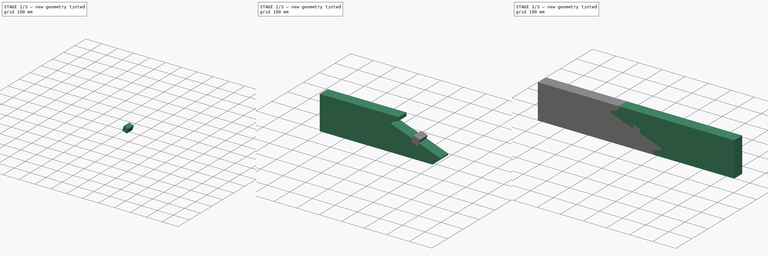
[diagram: build sequence overview — one tinted view per stage of 3, left to right]
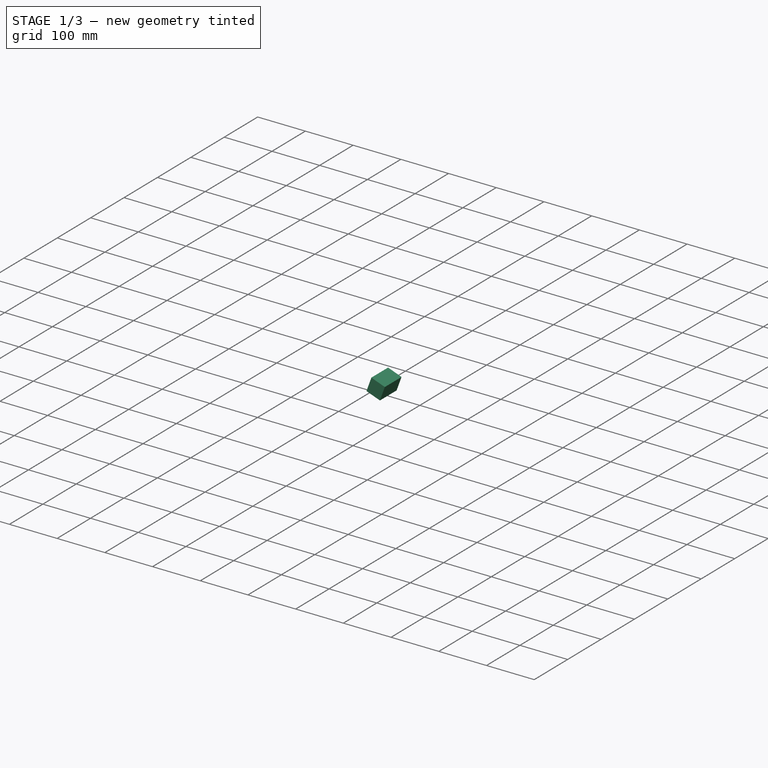
[diagram: stage 1 of 3 — iso view after this stage's code; geometry added in this stage tinted green]
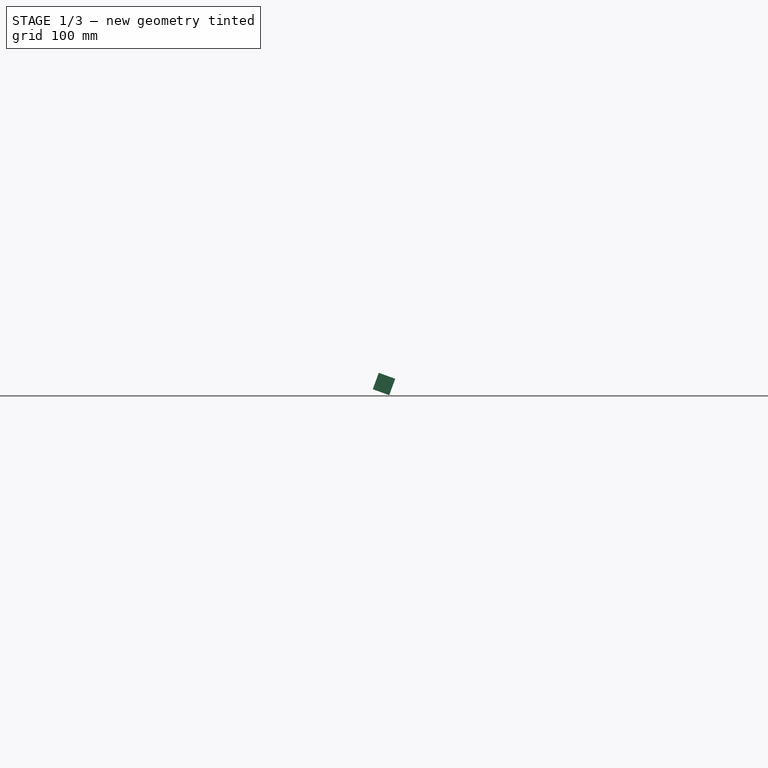
[diagram: stage 1 of 3 — front view after this stage's code; geometry added in this stage tinted green]
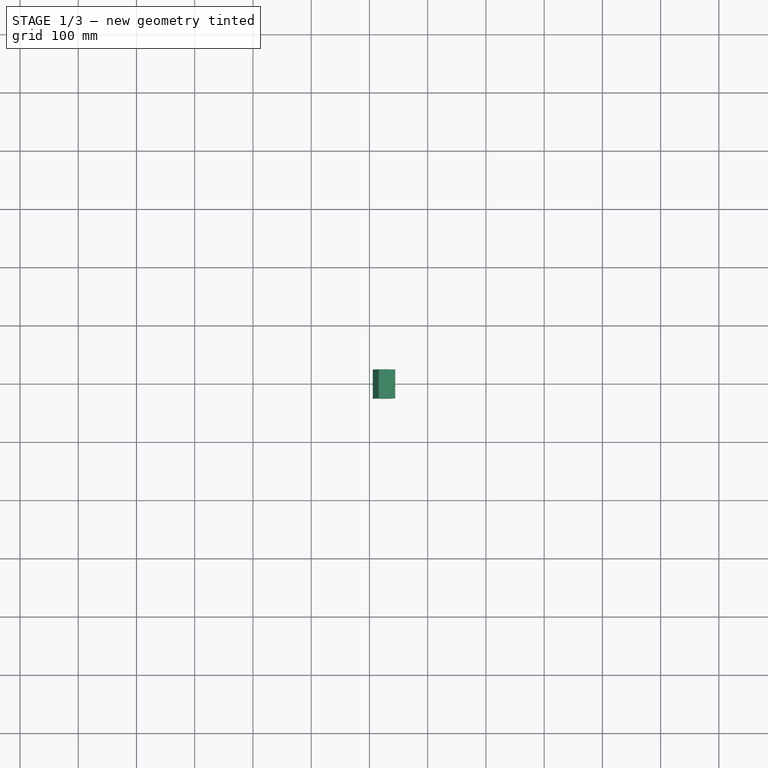
[diagram: stage 1 of 3 — top view after this stage's code; geometry added in this stage tinted green]
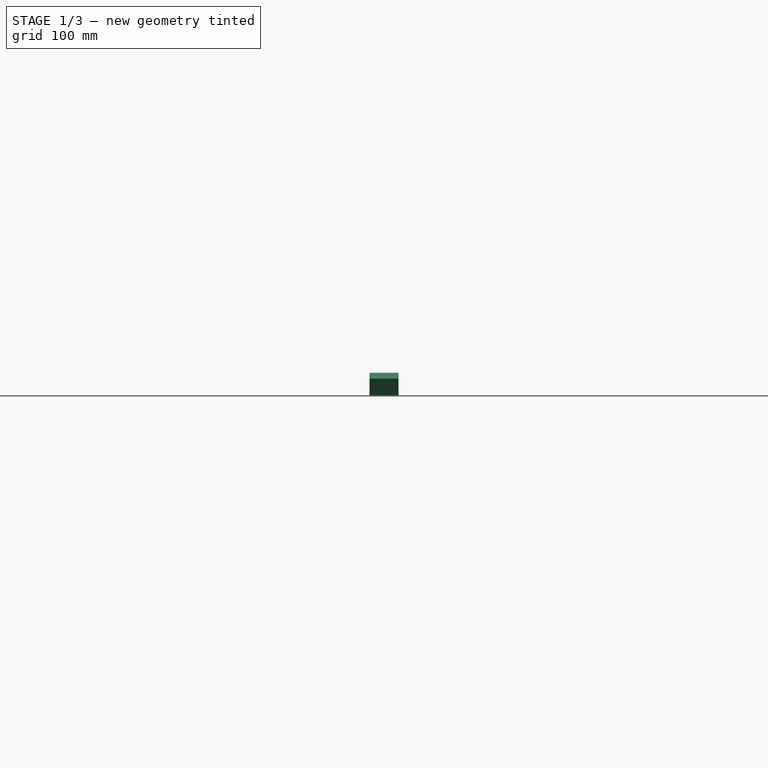
[diagram: stage 1 of 3 — right view after this stage's code; geometry added in this stage tinted green]
FCSTD DOCUMENT  (FreeCAD 0.18R13516 (Git))
Label: EMENDA VIGA MADEIRA
License: All rights reserved
LicenseURL: http://en.wikipedia.org/wiki/All_rights_reserved
objects: PartDesign::FeatureBase×3, Sketcher::SketchObject×2, PartDesign::Pad×2, PartDesign::Body×2, PartDesign::Fillet×1
note: 12 computed .brp shape members not serialized (recipe doc carries the construction recipe); baked Part::Feature solids carry a one-line shape summary decoded from their .brp

FEATURE [PartDesign::Body] Body
  Group = -> [Sketch,Pad,Fillet]
  Origin = -> Origin
  Tip = -> Fillet
FEATURE [Sketcher::SketchObject] Sketch001
  MapMode = 5
  Placement = pos=(0,0,0) rot=(1,0,0;1.5708rad)
  Support = -> [XZ_Plane001]
  sketch-geometry (5):
    g0: LineSegment StartX=-83.9651 StartY=94.2257 StartZ=0 EndX=-94.2257 EndY=66.0349 EndZ=0
    g1: LineSegment StartX=-94.2257 StartY=66.0349 StartZ=0 EndX=-66.0349 EndY=55.7743 EndZ=0
    g2: LineSegment StartX=-66.0349 StartY=55.7743 StartZ=0 EndX=-55.7743 EndY=83.9651 EndZ=0
    g3: LineSegment StartX=-55.7743 StartY=83.9651 StartZ=0 EndX=-83.9651 EndY=94.2257 EndZ=0
    g4: Circle [constr] CenterX=-75 CenterY=75 CenterZ=0 NormalX=0 NormalY=0 NormalZ=1 AngleXU=0 Radius=21.2132
  constraints (15):
    c: Coincident(g0,g1)
    c: Coincident(g1,g2)
    c: Coincident(g2,g3)
    c: Coincident(g3,g0)
    c: Equal(g0,g1)
    c: Equal(g0,g2)
    c: Equal(g0,g3)
    c: PointOnObject(g0,g4)
    c: PointOnObject(g1,g4)
    c: PointOnObject(g2,g4)
    c: PointOnObject(g3,g4)
    c: Distance(g3) = 30
    c: DistanceX(g4) = -75
    c: DistanceY(g4) = 75
    c: Angle(g-1,g1) = 2.79253
FEATURE [PartDesign::Pad] Pad001
  Length = 50
  Length2 = 100
  Midplane = true
  Placement = pos=(0,0,0) rot=(1,0,0;1.5708rad)
  Profile = -> Sketch001
  Type = 0
FEATURE [PartDesign::FeatureBase] Clone002
  BaseFeature = -> Pad001
  Placement = pos=(0,0,0) rot=(1,0,0;1.5708rad)
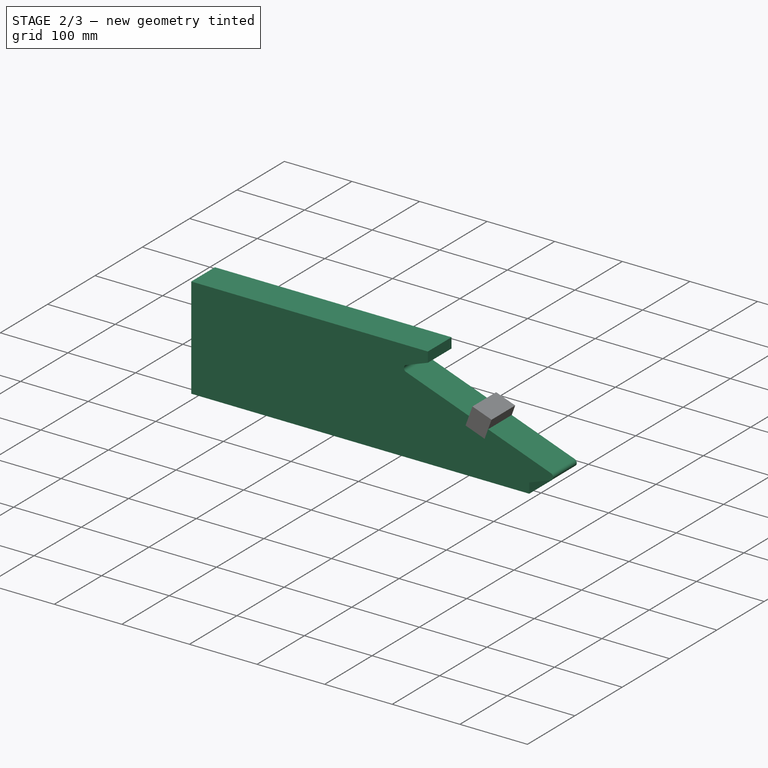
[diagram: stage 2 of 3 — iso view after this stage's code; geometry added in this stage tinted green]
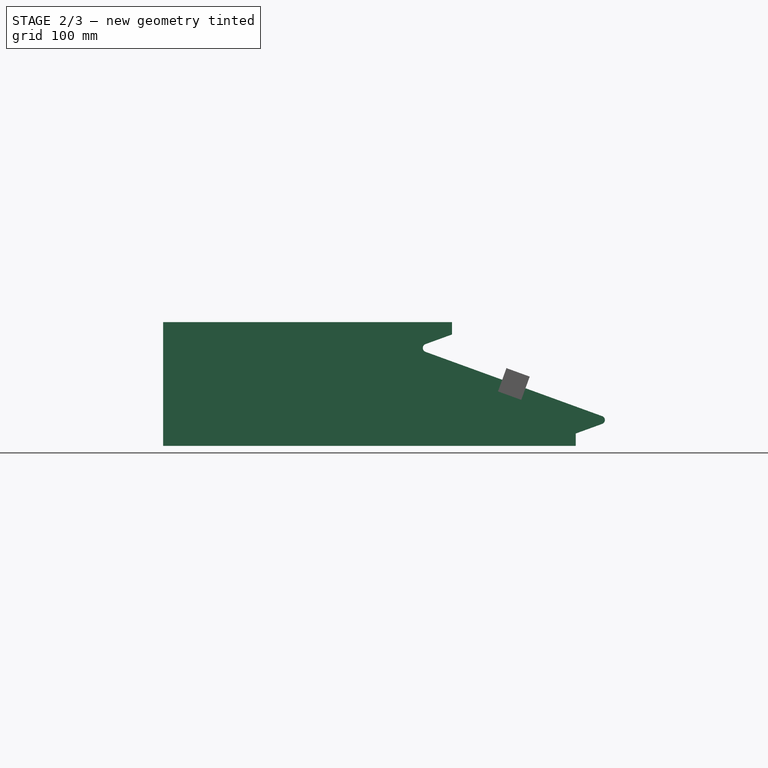
[diagram: stage 2 of 3 — front view after this stage's code; geometry added in this stage tinted green]
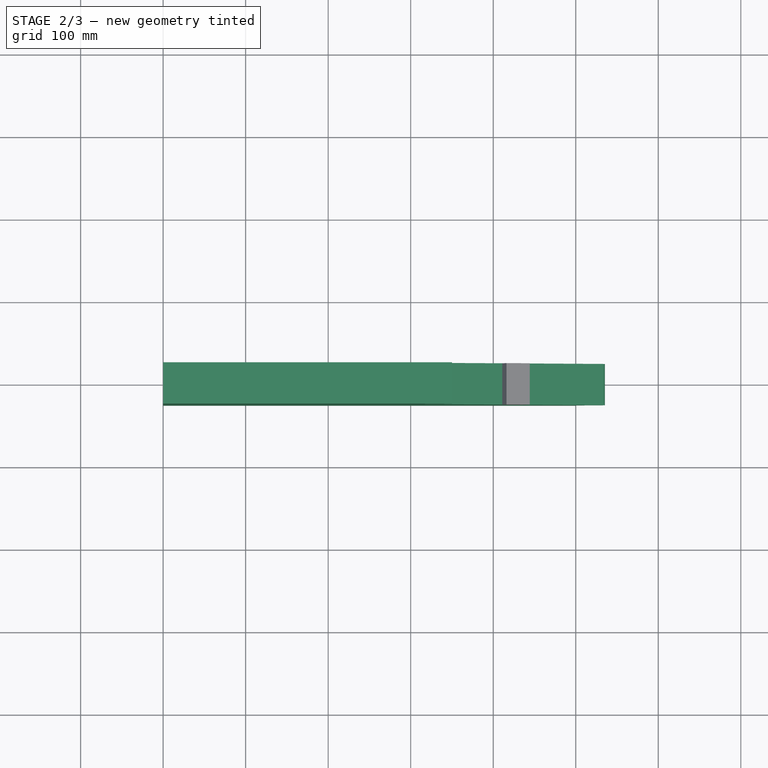
[diagram: stage 2 of 3 — top view after this stage's code; geometry added in this stage tinted green]
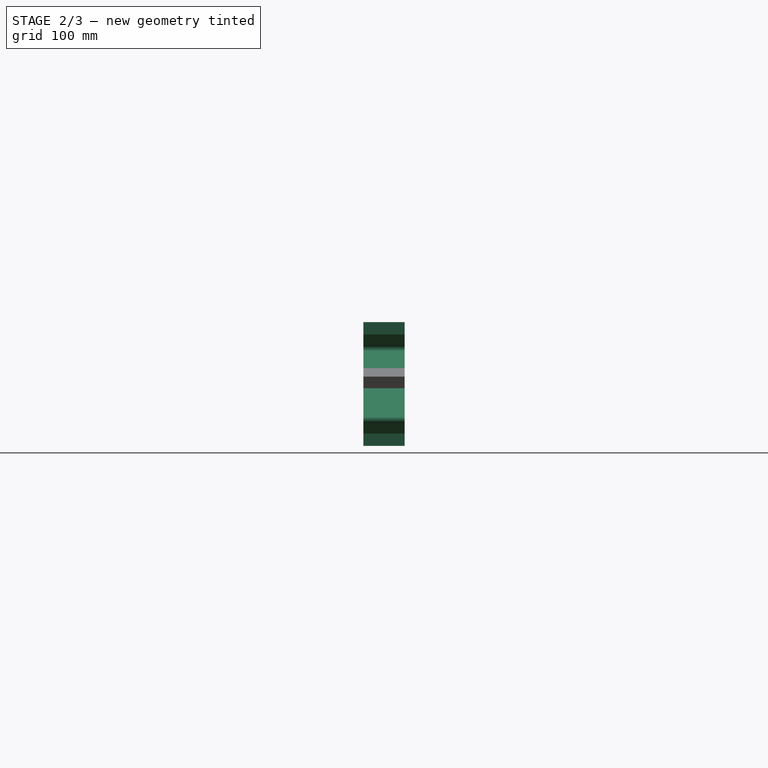
[diagram: stage 2 of 3 — right view after this stage's code; geometry added in this stage tinted green]
FEATURE [Sketcher::SketchObject] Sketch
  MapMode = 5
  Placement = pos=(0,0,0) rot=(1,0,0;1.5708rad)
  Support = -> [XZ_Plane]
  sketch-geometry (12):
    g0: LineSegment StartX=0 StartY=0 StartZ=0 EndX=0 EndY=15 EndZ=0
    g1: LineSegment StartX=0 StartY=15 StartZ=0 EndX=44.9243 EndY=31.3511 EndZ=0
    g2: LineSegment StartX=44.9243 StartY=31.3511 StartZ=0 EndX=-60.9046 EndY=69.8697 EndZ=0
    g3: LineSegment StartX=-60.9046 StartY=69.8697 StartZ=0 EndX=-66.0349 EndY=55.7743 EndZ=0
    g4: LineSegment StartX=-66.0349 StartY=55.7743 StartZ=0 EndX=-94.2257 EndY=66.0349 EndZ=0
    g5: LineSegment StartX=-94.2257 StartY=66.0349 StartZ=0 EndX=-89.0954 EndY=80.1303 EndZ=0
    g6: LineSegment StartX=-89.0954 StartY=80.1303 StartZ=0 EndX=-194.924 EndY=118.649 EndZ=0
    g7: LineSegment StartX=-194.924 StartY=118.649 StartZ=0 EndX=-150 EndY=135 EndZ=0
    g8: LineSegment StartX=-150 StartY=135 StartZ=0 EndX=-150 EndY=150 EndZ=0
    g9: LineSegment StartX=-150 StartY=150 StartZ=0 EndX=-500 EndY=150 EndZ=0
    g10: LineSegment StartX=-500 StartY=150 StartZ=0 EndX=-500 EndY=0 EndZ=0
    g11: LineSegment StartX=-500 StartY=0 StartZ=0 EndX=0 EndY=0 EndZ=0
  constraints (35):
    c: Coincident(g-1,g0)
    c: PointOnObject(g0,g-2)
    c: Coincident(g0,g1)
    c: Coincident(g1,g2)
    c: Coincident(g2,g3)
    c: Coincident(g3,g4)
    c: Coincident(g4,g5)
    c: Coincident(g5,g6)
    c: Coincident(g6,g7)
    c: Coincident(g7,g8)
    c: Coincident(g8,g9)
    c: Horizontal(g9)
    c: Coincident(g9,g10)
    c: Vertical(g10)
    c: Coincident(g10,g11)
    c: Coincident(g11,g-1)
    c: Horizontal(g11)
    c: Perpendicular(g5,g6)
    c: Perpendicular(g4,g5)
    c: Perpendicular(g3,g4)
    c: Perpendicular(g2,g3)
    c: Equal(g8,g0)
    c: Equal(g5,g3)
    c: Equal(g1,g7)
    c: Vertical(g8)
    c: Angle(g1,g11) = 2.79253
    c: Angle(g2,g1) = 0.698132
    c: Angle(g6,g7) = 0.698132
    c: Equal(g6,g2)
    c: DistanceX(g11,g11) = 500
    c: DistanceY(g10,g10) = 150
    c: DistanceY(g0,g0) = 15
    c: Distance(g4) = 30
    c: DistanceX(g8,g-1) = 150
    c: Equal(g3,g0)
FEATURE [PartDesign::Pad] Pad
  Length = 50
  Length2 = 100
  Midplane = true
  Placement = pos=(0,0,0) rot=(1,0,0;1.5708rad)
  Profile = -> Sketch
  Type = 0
FEATURE [PartDesign::Fillet] Fillet
  Base = -> Pad [Edge5,Edge20]
  BaseFeature = -> Pad
  Placement = pos=(0,0,0) rot=(1,0,0;1.5708rad)
  Radius = 5
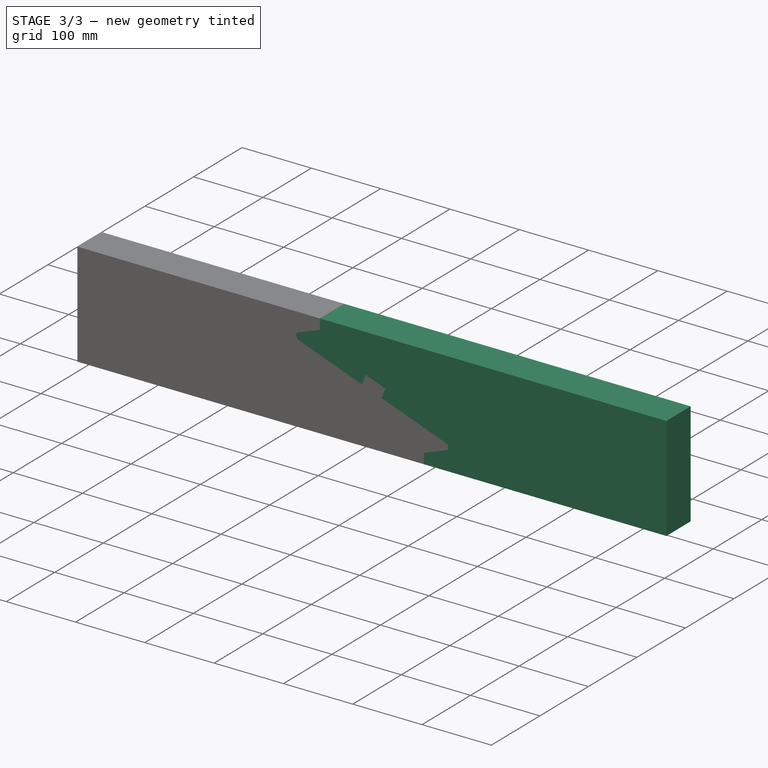
[diagram: stage 3 of 3 — iso view after this stage's code; geometry added in this stage tinted green]
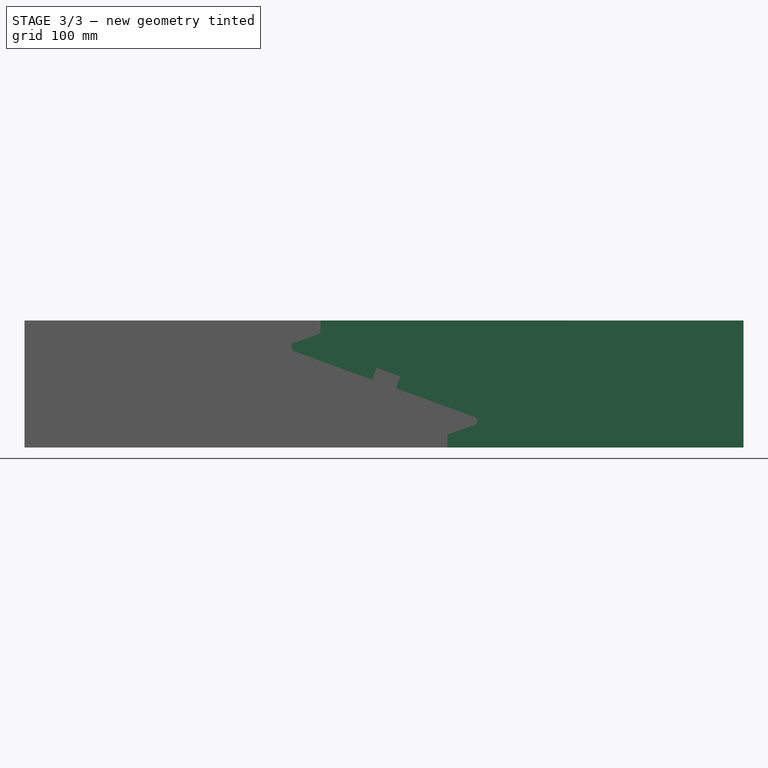
[diagram: stage 3 of 3 — front view after this stage's code; geometry added in this stage tinted green]
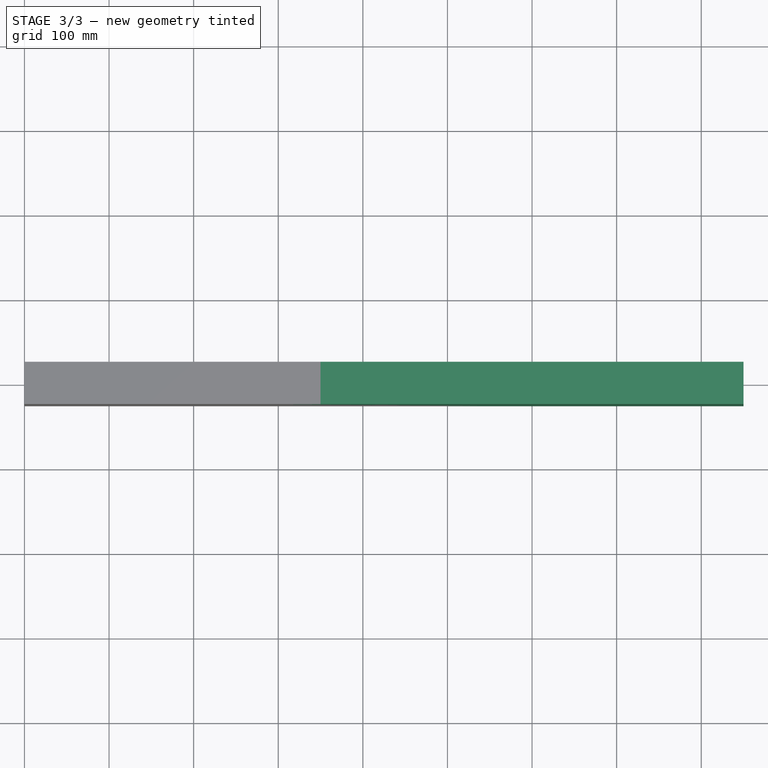
[diagram: stage 3 of 3 — top view after this stage's code; geometry added in this stage tinted green]
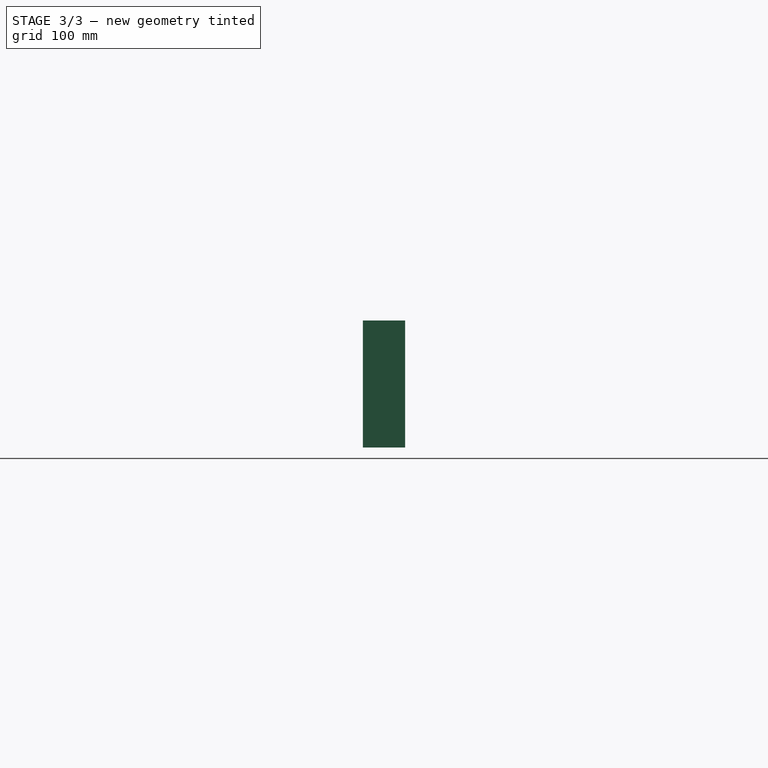
[diagram: stage 3 of 3 — right view after this stage's code; geometry added in this stage tinted green]
FEATURE [PartDesign::Body] Body001
  Group = -> [Sketch001,Pad001]
  Origin = -> Origin001
  Tip = -> Pad001
FEATURE [PartDesign::FeatureBase] Clone
  BaseFeature = -> Fillet
  Placement = pos=(-150,0,150) rot=(0,-0.707107,0.707107;3.14159rad)
FEATURE [PartDesign::FeatureBase] Clone001
  BaseFeature = -> Fillet
  Placement = pos=(0,0,0) rot=(1,0,0;1.5708rad)
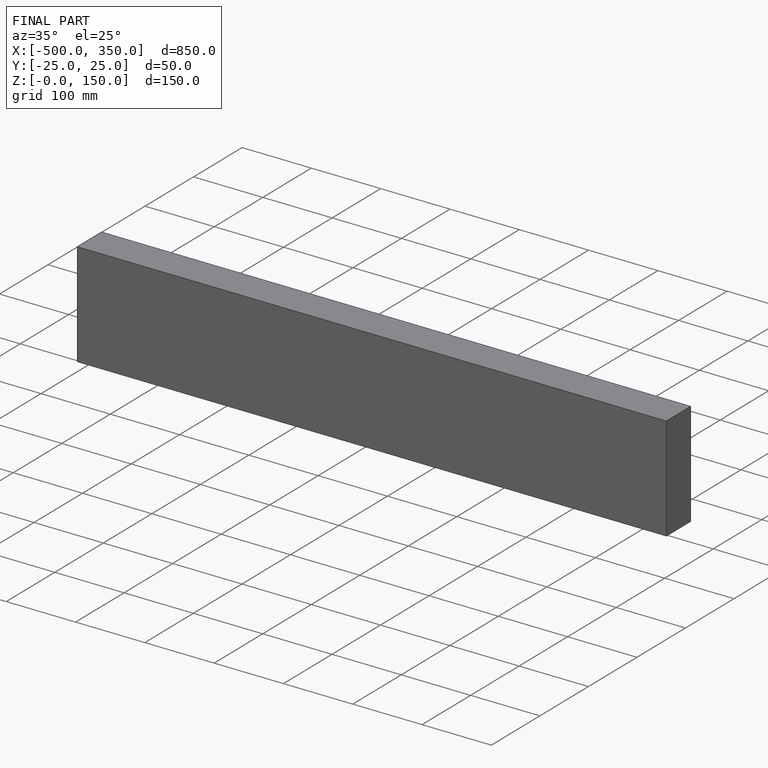
[diagram: finished part — iso view with bounding-box wireframe]
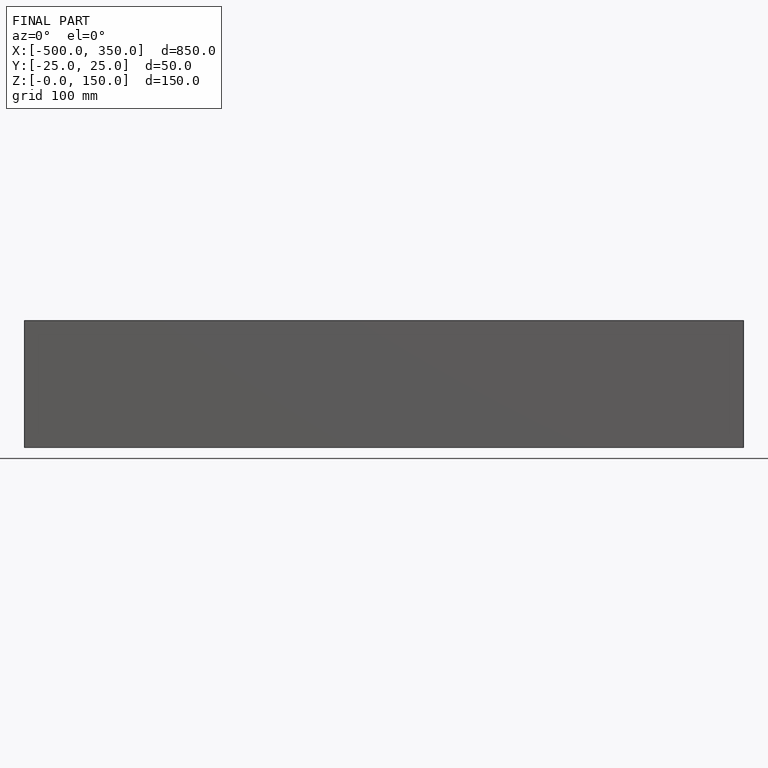
[diagram: finished part — front view with bounding-box wireframe]
